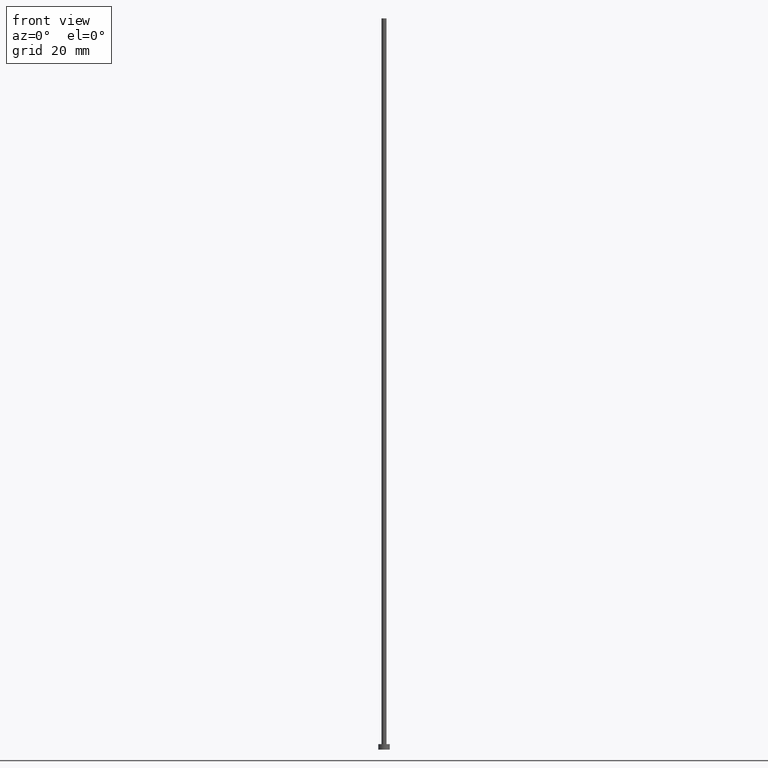
[diagram: clean part render]
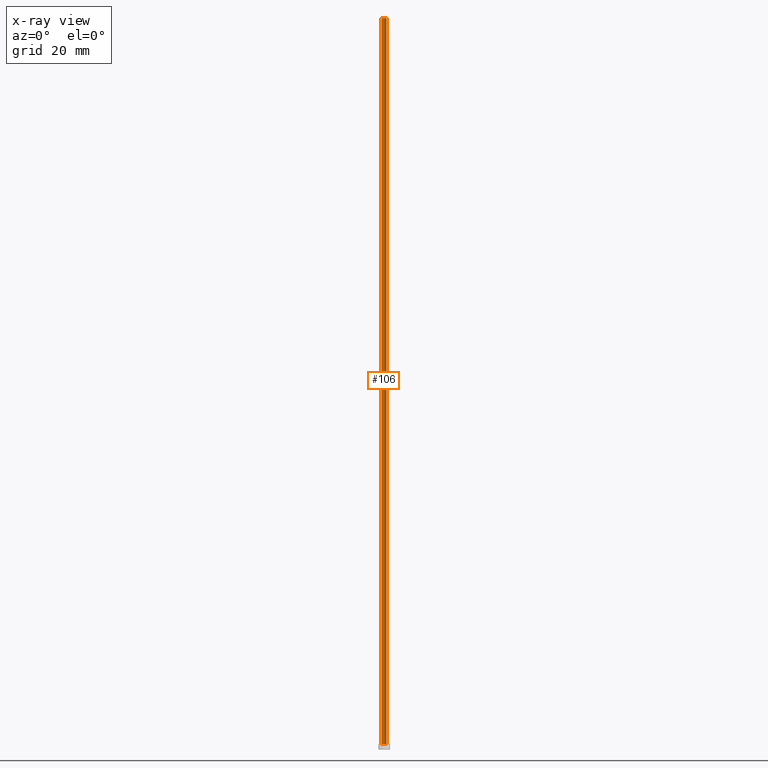
[diagram: x-ray — body ghosted, one internal face saturated and labeled with its STEP entity id]
A machine part, front view, then the same camera in x-ray: the body is ghosted and one INTERNAL B-rep face — a face not visible from any outside direction — is saturated and labeled: STEP entity #106.
In plain terms, the highlighted cylindrical surface (edge-blend (fillet) strip) has radius 0.55 mm, axis along (-0, -0, -1).
Its self-contained STEP definition (entity closure, byte-faithful):
#5 = EDGE_CURVE ( 'NONE', #99, #31, #131, .T. ) ;
#12 = DIRECTION ( 'NONE',  ( 1.000000000000000000, 0.000000000000000000, 0.000000000000000000 ) ) ;
#22 = EDGE_CURVE ( 'NONE', #95, #31, #127, .T. ) ;
#24 = ORIENTED_EDGE ( 'NONE', *, *, #122, .F. ) ;
#27 = VERTEX_POINT ( 'NONE', #94 ) ;
#28 = DIRECTION ( 'NONE',  ( 0.000000000000000000, 0.000000000000000000, 1.000000000000000000 ) ) ;
#29 = AXIS2_PLACEMENT_3D ( 'NONE', #147, #46, #208 ) ;
#31 = VERTEX_POINT ( 'NONE', #69 ) ;
#44 = CYLINDRICAL_SURFACE ( 'NONE', #29, 0.5500000000000000444 ) ;
#46 = DIRECTION ( 'NONE',  ( -0.000000000000000000, -0.000000000000000000, -1.000000000000000000 ) ) ;
#67 = DIRECTION ( 'NONE',  ( -0.000000000000000000, -0.000000000000000000, -1.000000000000000000 ) ) ;
#69 = CARTESIAN_POINT ( 'NONE',  ( -0.5500000000000000444, 0.000000000000000000, 1.199999999999999956 ) ) ;
#92 = CARTESIAN_POINT ( 'NONE',  ( -0.5500000000000000444, 0.000000000000000000, 160.0000000000000284 ) ) ;
#93 = CARTESIAN_POINT ( 'NONE',  ( 0.000000000000000000, 0.000000000000000000, 1.199999999999999956 ) ) ;
#94 = CARTESIAN_POINT ( 'NONE',  ( 0.5500000000000000444, 6.735557395310442516E-17, 160.0000000000000284 ) ) ;
#95 = VERTEX_POINT ( 'NONE', #92 ) ;
#99 = VERTEX_POINT ( 'NONE', #176 ) ;
#106 = ADVANCED_FACE ( 'NONE', ( #213 ), #44, .T. ) ;
#120 = EDGE_LOOP ( 'NONE', ( #24, #209, #139, #134 ) ) ;
#122 = EDGE_CURVE ( 'NONE', #27, #95, #187, .T. ) ;
#127 = LINE ( 'NONE', #174, #140 ) ;
#131 = CIRCLE ( 'NONE', #218, 0.5500000000000000444 ) ;
#134 = ORIENTED_EDGE ( 'NONE', *, *, #22, .F. ) ;
#139 = ORIENTED_EDGE ( 'NONE', *, *, #5, .T. ) ;
#140 = VECTOR ( 'NONE', #67, 1000.000000000000000 ) ;
#147 = CARTESIAN_POINT ( 'NONE',  ( 0.000000000000000000, 0.000000000000000000, 160.0000000000000284 ) ) ;
#170 = EDGE_CURVE ( 'NONE', #27, #99, #253, .T. ) ;
#174 = CARTESIAN_POINT ( 'NONE',  ( -0.5500000000000000444, 0.000000000000000000, 160.0000000000000284 ) ) ;
#176 = CARTESIAN_POINT ( 'NONE',  ( 0.5500000000000000444, 6.735557395310442516E-17, 1.199999999999999956 ) ) ;
#177 = CARTESIAN_POINT ( 'NONE',  ( 0.5500000000000000444, 6.735557395310442516E-17, 160.0000000000000284 ) ) ;
#187 = CIRCLE ( 'NONE', #235, 0.5500000000000000444 ) ;
#192 = CARTESIAN_POINT ( 'NONE',  ( 0.000000000000000000, 0.000000000000000000, 160.0000000000000284 ) ) ;
#195 = VECTOR ( 'NONE', #234, 1000.000000000000000 ) ;
#208 = DIRECTION ( 'NONE',  ( -1.000000000000000000, 0.000000000000000000, 0.000000000000000000 ) ) ;
#209 = ORIENTED_EDGE ( 'NONE', *, *, #170, .T. ) ;
#213 = FACE_OUTER_BOUND ( 'NONE', #120, .T. ) ;
#218 = AXIS2_PLACEMENT_3D ( 'NONE', #93, #251, #12 ) ;
#234 = DIRECTION ( 'NONE',  ( -0.000000000000000000, -0.000000000000000000, -1.000000000000000000 ) ) ;
#235 = AXIS2_PLACEMENT_3D ( 'NONE', #192, #28, #248 ) ;
#248 = DIRECTION ( 'NONE',  ( 1.000000000000000000, 0.000000000000000000, 0.000000000000000000 ) ) ;
#251 = DIRECTION ( 'NONE',  ( 0.000000000000000000, 0.000000000000000000, 1.000000000000000000 ) ) ;
#253 = LINE ( 'NONE', #177, #195 ) ;